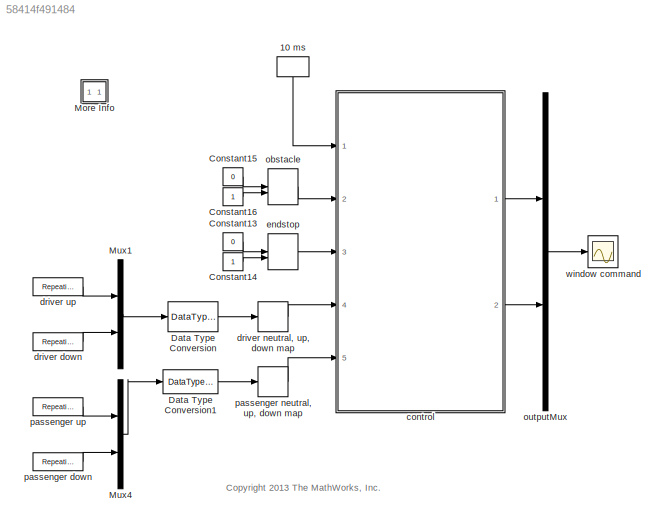
MODEL slx_58414f491484
KIND model
BLOCK [DiscretePulseGenerator] 10 ms
  Ports = [0, 1]
  SampleTime = 10e-3
BLOCK [Constant] Constant13
  OutDataTypeStr = boolean
  Value = 0
BLOCK [Constant] Constant14
  OutDataTypeStr = boolean
BLOCK [Constant] Constant15
  OutDataTypeStr = boolean
  Value = 0
BLOCK [Constant] Constant16
  OutDataTypeStr = boolean
BLOCK [DataTypeConversion] Data Type Conversion
  RndMeth = Floor
  SaturateOnIntegerOverflow = off
BLOCK [DataTypeConversion] Data Type Conversion1
  RndMeth = Floor
  SaturateOnIntegerOverflow = off
BLOCK [SubSystem] More Info
  OpenFcn = showdemo('slexPowerWindowScript')
  Ports = []
  RequestExecContextInheritance = off
BLOCK [Mux] Mux1
  DisplayOption = bar
  Inputs = 2
  Ports = [2, 1]
BLOCK [Mux] Mux4
  DisplayOption = bar
  Inputs = 2
  Ports = [2, 1]
BLOCK [ModelReference] control 
  CopyOfModelName = slexPowerWindowControl.slx
  DefaultDataLogging = on
  ModelNameDialog = slexPowerWindowControl.slx
  ModelReferenceVersion = 1.83
  Ports = [5, 2]
BLOCK [Reference] driver down  REF=simulink/Sources/Repeating
Sequence
  Ports = [0, 1]
  SourceBlock = simulink/Sources/Repeating\nSequence
  SourceType = Repeating table
  rep_seq_t = [0 1 2 3 4 5 6]
  rep_seq_y = [0 1 0 0 1 1 0]
BLOCK [CombinatorialLogic] driver neutral, up, down map
  SampleTime = 0.01
  TruthTable = [1 0 0;0 0 1;0 1 0;1 0 0]
BLOCK [Reference] driver up  REF=simulink/Sources/Repeating
Sequence
  Ports = [0, 1]
  SourceBlock = simulink/Sources/Repeating\nSequence
  SourceType = Repeating table
  rep_seq_t = [0 1 2 3 4 5 6]
  rep_seq_y = [0 0 1 0 1 0 1]
BLOCK [ManualSwitch] endstop
BLOCK [ManualSwitch] obstacle
BLOCK [Mux] outputMux
  DisplayOption = bar
  Inputs = 2
  Ports = [2, 1]
BLOCK [Reference] passenger down  REF=simulink/Sources/Repeating
Sequence
  Ports = [0, 1]
  SourceBlock = simulink/Sources/Repeating\nSequence
  SourceType = Repeating table
  rep_seq_t = [0 1 2 3 4 5 6]
  rep_seq_y = [0 0 0 1 0 1 1]
BLOCK [CombinatorialLogic] passenger neutral, up, down map
  SampleTime = 0.01
  TruthTable = [1 0 0;0 0 1;0 1 0;1 0 0]
BLOCK [Reference] passenger up  REF=simulink/Sources/Repeating
Sequence
  Ports = [0, 1]
  SourceBlock = simulink/Sources/Repeating\nSequence
  SourceType = Repeating table
  rep_seq_t = [0 1 2 3 4 5 6]
  rep_seq_y = [0 0 0 0 0 0 0]
BLOCK [Scope] window command
  DataFormat = StructureWithTime
  Floating = off
  NumInputPorts = 1
  Ports = [1]
  ShowLegends = off
  YMax = 1
  YMin = 0
ANNOTATION (root): <copyright redacted>
LINE 10 ms:1 -> control :1
LINE Constant13:1 -> endstop:1
LINE Constant14:1 -> endstop:2
LINE Constant15:1 -> obstacle:1
LINE Constant16:1 -> obstacle:2
LINE Data Type Conversion1:1 -> passenger neutral, up, down map:1
LINE Data Type Conversion:1 -> driver neutral, up, down map:1
LINE Mux1:1 -> Data Type Conversion:1
LINE Mux4:1 -> Data Type Conversion1:1
LINE control :1 -> outputMux:1
LINE control :2 -> outputMux:2
LINE driver down:1 -> Mux1:2
LINE driver neutral, up, down map:1 -> control :4
LINE driver up:1 -> Mux1:1
LINE endstop:1 -> control :3
LINE obstacle:1 -> control :2
LINE outputMux:1 -> window command:1
LINE passenger down:1 -> Mux4:2
LINE passenger neutral, up, down map:1 -> control :5
LINE passenger up:1 -> Mux4:1
